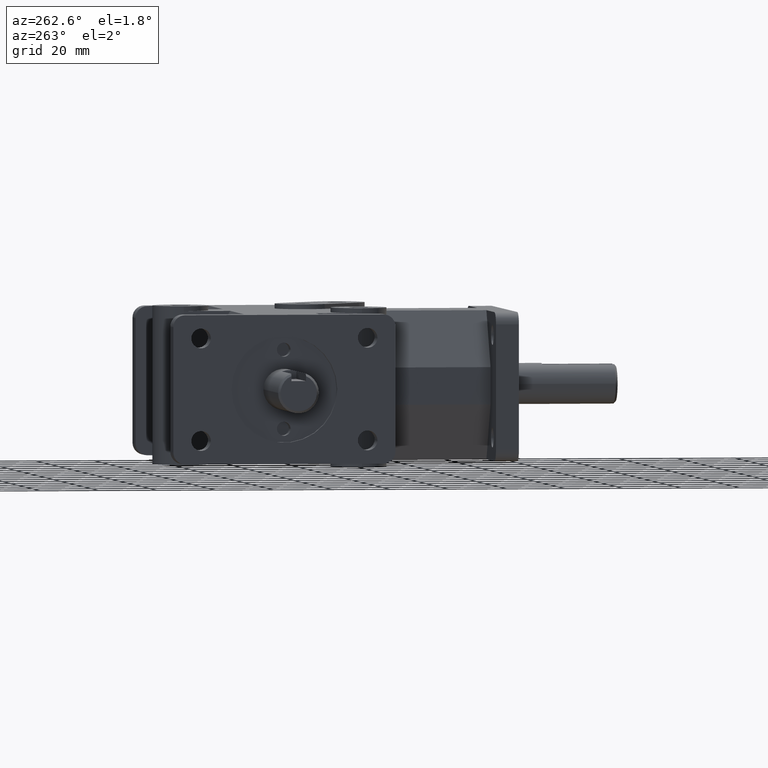
[diagram: clean part render]
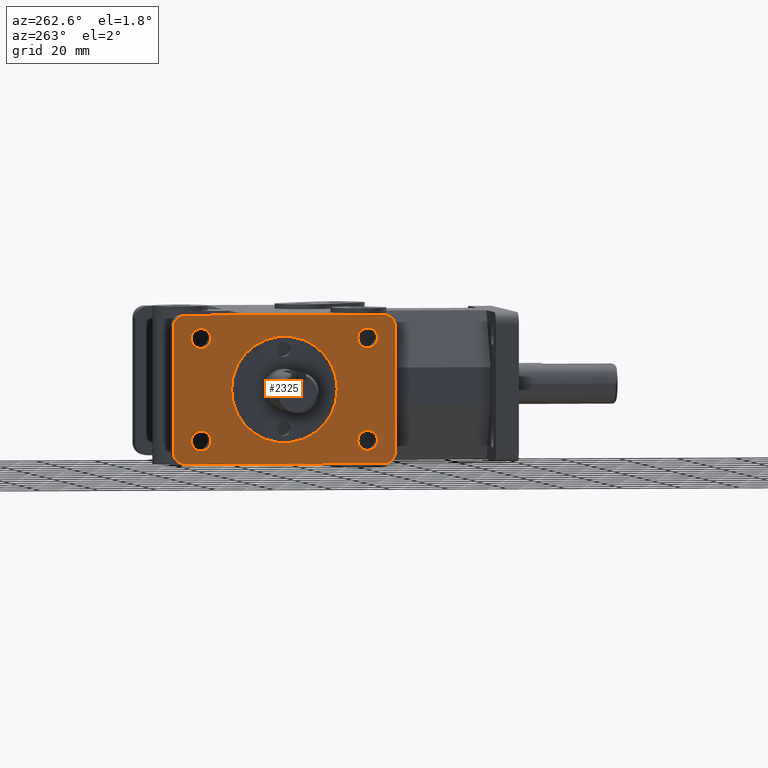
[diagram: same view with one face highlighted and labeled with its STEP entity id]
A machine part, auxiliary view. The second image highlights one B-rep face of the part: STEP entity #2325.
In plain terms, the highlighted planar face has unit normal (-1, 0, 0).
Its self-contained STEP definition (entity closure, byte-faithful):
#32=FACE_BOUND('',#353,.T.);
#33=FACE_BOUND('',#354,.T.);
#34=FACE_BOUND('',#355,.T.);
#35=FACE_BOUND('',#356,.T.);
#36=FACE_BOUND('',#357,.T.);
#98=PLANE('',#2538);
#206=FACE_OUTER_BOUND('',#352,.T.);
#352=EDGE_LOOP('',(#1838,#1839,#1840,#1841,#1842,#1843,#1844,#1845));
#353=EDGE_LOOP('',(#1846));
#354=EDGE_LOOP('',(#1847));
#355=EDGE_LOOP('',(#1848));
#356=EDGE_LOOP('',(#1849));
#357=EDGE_LOOP('',(#1850));
#555=LINE('',#3727,#777);
#561=LINE('',#3740,#783);
#562=LINE('',#3741,#784);
#563=LINE('',#3742,#785);
#777=VECTOR('',#3002,1.);
#783=VECTOR('',#3012,1.);
#784=VECTOR('',#3013,1.);
#785=VECTOR('',#3014,1.);
#908=CIRCLE('',#2437,18.1356);
#945=CIRCLE('',#2509,4.064);
#947=CIRCLE('',#2512,4.064);
#949=CIRCLE('',#2515,4.064);
#951=CIRCLE('',#2518,4.064);
#966=CIRCLE('',#2539,3.3655);
#967=CIRCLE('',#2540,3.3655);
#968=CIRCLE('',#2541,3.3655);
#969=CIRCLE('',#2542,3.3655);
#1014=VERTEX_POINT('',#3385);
#1088=VERTEX_POINT('',#3601);
#1089=VERTEX_POINT('',#3602);
#1092=VERTEX_POINT('',#3610);
#1093=VERTEX_POINT('',#3611);
#1096=VERTEX_POINT('',#3619);
#1097=VERTEX_POINT('',#3620);
#1100=VERTEX_POINT('',#3628);
#1101=VERTEX_POINT('',#3629);
#1146=VERTEX_POINT('',#3743);
#1147=VERTEX_POINT('',#3745);
#1148=VERTEX_POINT('',#3747);
#1149=VERTEX_POINT('',#3749);
#1241=EDGE_CURVE('',#1014,#1014,#908,.T.);
#1336=EDGE_CURVE('',#1088,#1089,#945,.T.);
#1340=EDGE_CURVE('',#1092,#1093,#947,.T.);
#1344=EDGE_CURVE('',#1096,#1097,#949,.T.);
#1348=EDGE_CURVE('',#1100,#1101,#951,.T.);
#1401=EDGE_CURVE('',#1096,#1093,#555,.T.);
#1408=EDGE_CURVE('',#1088,#1101,#561,.T.);
#1409=EDGE_CURVE('',#1097,#1100,#562,.T.);
#1410=EDGE_CURVE('',#1092,#1089,#563,.T.);
#1411=EDGE_CURVE('',#1146,#1146,#966,.T.);
#1412=EDGE_CURVE('',#1147,#1147,#967,.T.);
#1413=EDGE_CURVE('',#1148,#1148,#968,.T.);
#1414=EDGE_CURVE('',#1149,#1149,#969,.T.);
#1838=ORIENTED_EDGE('',*,*,#1336,.F.);
#1839=ORIENTED_EDGE('',*,*,#1408,.T.);
#1840=ORIENTED_EDGE('',*,*,#1348,.F.);
#1841=ORIENTED_EDGE('',*,*,#1409,.F.);
#1842=ORIENTED_EDGE('',*,*,#1344,.F.);
#1843=ORIENTED_EDGE('',*,*,#1401,.T.);
#1844=ORIENTED_EDGE('',*,*,#1340,.F.);
#1845=ORIENTED_EDGE('',*,*,#1410,.T.);
#1846=ORIENTED_EDGE('',*,*,#1241,.T.);
#1847=ORIENTED_EDGE('',*,*,#1411,.T.);
#1848=ORIENTED_EDGE('',*,*,#1412,.T.);
#1849=ORIENTED_EDGE('',*,*,#1413,.T.);
#1850=ORIENTED_EDGE('',*,*,#1414,.T.);
#2325=ADVANCED_FACE('',(#206,#32,#33,#34,#35,#36),#98,.T.);
#2437=AXIS2_PLACEMENT_3D('',#3386,#2705,#2706);
#2509=AXIS2_PLACEMENT_3D('',#3603,#2901,#2902);
#2512=AXIS2_PLACEMENT_3D('',#3612,#2909,#2910);
#2515=AXIS2_PLACEMENT_3D('',#3621,#2917,#2918);
#2518=AXIS2_PLACEMENT_3D('',#3630,#2925,#2926);
#2538=AXIS2_PLACEMENT_3D('',#3739,#3010,#3011);
#2539=AXIS2_PLACEMENT_3D('',#3744,#3015,#3016);
#2540=AXIS2_PLACEMENT_3D('',#3746,#3017,#3018);
#2541=AXIS2_PLACEMENT_3D('',#3748,#3019,#3020);
#2542=AXIS2_PLACEMENT_3D('',#3750,#3021,#3022);
#2705=DIRECTION('center_axis',(1.,0.,0.));
#2706=DIRECTION('ref_axis',(0.,-1.,0.));
#2901=DIRECTION('center_axis',(1.,0.,0.));
#2902=DIRECTION('ref_axis',(0.,0.707106781186548,-0.707106781186548));
#2909=DIRECTION('center_axis',(1.,0.,0.));
#2910=DIRECTION('ref_axis',(0.,0.707106781186548,0.707106781186548));
#2917=DIRECTION('center_axis',(1.,0.,0.));
#2918=DIRECTION('ref_axis',(0.,-0.707106781186548,0.707106781186548));
#2925=DIRECTION('center_axis',(1.,0.,0.));
#2926=DIRECTION('ref_axis',(0.,-0.707106781186548,-0.707106781186548));
#3002=DIRECTION('',(0.,1.,0.));
#3010=DIRECTION('center_axis',(-1.,0.,0.));
#3011=DIRECTION('ref_axis',(0.,1.,0.));
#3012=DIRECTION('',(0.,-1.,0.));
#3013=DIRECTION('',(0.,0.,-1.));
#3014=DIRECTION('',(0.,0.,-1.));
#3015=DIRECTION('center_axis',(1.,0.,0.));
#3016=DIRECTION('ref_axis',(0.,-1.,0.));
#3017=DIRECTION('center_axis',(1.,0.,0.));
#3018=DIRECTION('ref_axis',(0.,-1.,0.));
#3019=DIRECTION('center_axis',(1.,0.,0.));
#3020=DIRECTION('ref_axis',(0.,-1.,0.));
#3021=DIRECTION('center_axis',(1.,0.,0.));
#3022=DIRECTION('ref_axis',(0.,-1.,0.));
#3385=CARTESIAN_POINT('',(-53.975,100.6856,2.22097044906167E-15));
#3386=CARTESIAN_POINT('Origin',(-53.975,82.55,0.));
#3601=CARTESIAN_POINT('',(-53.975,116.586,-25.4));
#3602=CARTESIAN_POINT('',(-53.975,120.65,-21.336));
#3603=CARTESIAN_POINT('Origin',(-53.975,116.586,-21.336));
#3610=CARTESIAN_POINT('',(-53.975,120.65,21.336));
#3611=CARTESIAN_POINT('',(-53.975,116.586,25.4));
#3612=CARTESIAN_POINT('Origin',(-53.975,116.586,21.336));
#3619=CARTESIAN_POINT('',(-53.975,48.514,25.4));
#3620=CARTESIAN_POINT('',(-53.975,44.45,21.336));
#3621=CARTESIAN_POINT('Origin',(-53.975,48.514,21.336));
#3628=CARTESIAN_POINT('',(-53.975,44.45,-21.336));
#3629=CARTESIAN_POINT('',(-53.975,48.514,-25.4));
#3630=CARTESIAN_POINT('Origin',(-53.975,48.514,-21.336));
#3727=CARTESIAN_POINT('',(-53.975,44.45,25.4));
#3739=CARTESIAN_POINT('Origin',(-53.975,120.65,0.));
#3740=CARTESIAN_POINT('',(-53.975,44.45,-25.4));
#3741=CARTESIAN_POINT('',(-53.975,44.45,0.));
#3742=CARTESIAN_POINT('',(-53.975,120.65,0.));
#3743=CARTESIAN_POINT('',(-53.975,114.4905,17.4625));
#3744=CARTESIAN_POINT('Origin',(-53.975,111.125,17.4625));
#3745=CARTESIAN_POINT('',(-53.975,114.4905,-17.4625));
#3746=CARTESIAN_POINT('Origin',(-53.975,111.125,-17.4625));
#3747=CARTESIAN_POINT('',(-53.975,57.3405,17.4625));
#3748=CARTESIAN_POINT('Origin',(-53.975,53.975,17.4625));
#3749=CARTESIAN_POINT('',(-53.975,57.3405,-17.4625));
#3750=CARTESIAN_POINT('Origin',(-53.975,53.975,-17.4625));